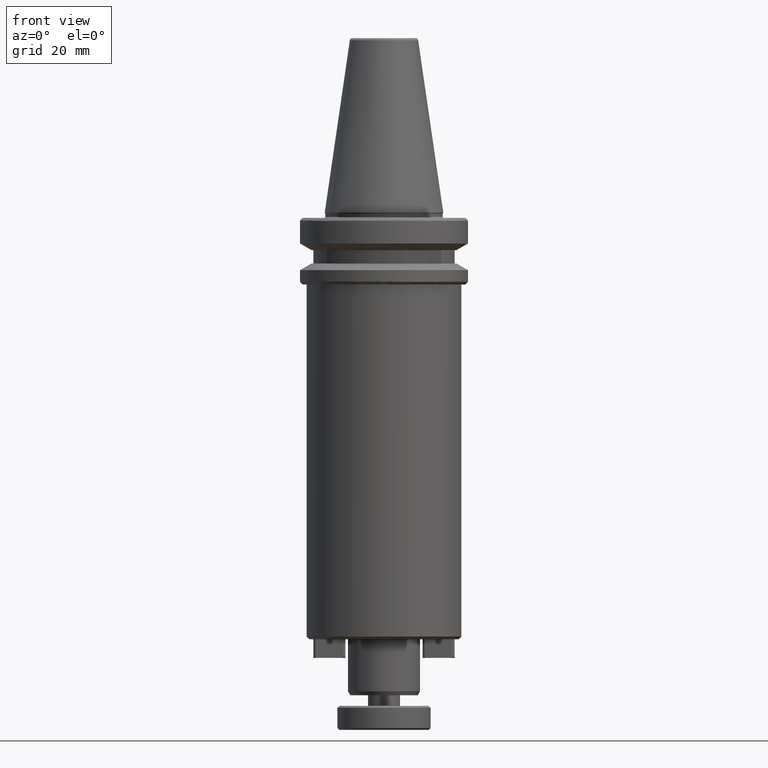
[diagram: clean part render]
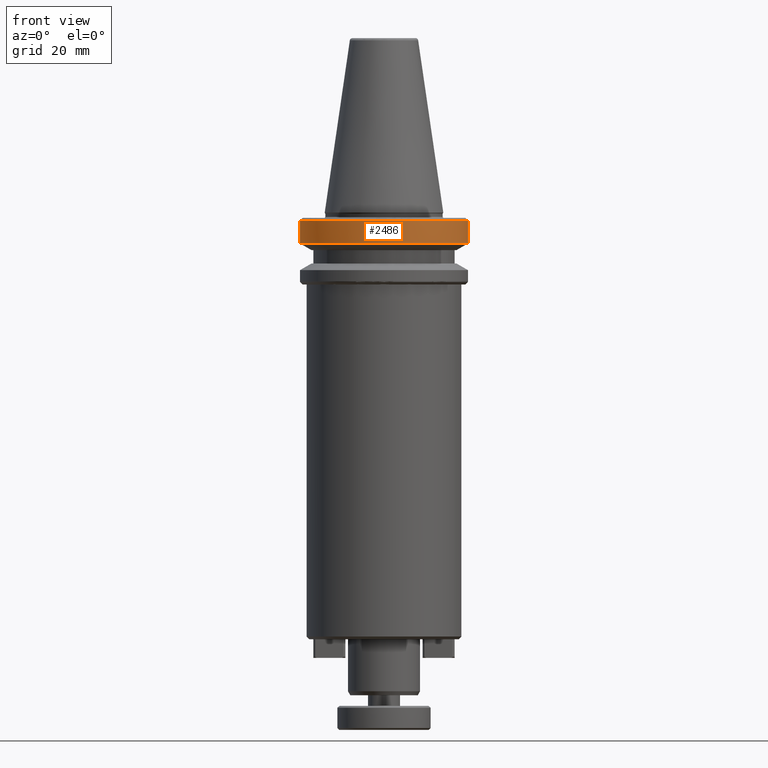
[diagram: same view with one face highlighted and labeled with its STEP entity id]
A machine part, front view. The second image highlights one B-rep face of the part: STEP entity #2486.
In plain terms, the highlighted cylindrical surface (partial cylindrical patch) has radius 31.5 mm, axis along (0, 0, 1).
Its self-contained STEP definition (entity closure, byte-faithful):
#43 = ORIENTED_EDGE ( 'NONE', *, *, #3389, .T. ) ;
#278 = EDGE_CURVE ( 'NONE', #2463, #1646, #1822, .T. ) ;
#285 = AXIS2_PLACEMENT_3D ( 'NONE', #3211, #3201, #3198 ) ;
#291 = FACE_OUTER_BOUND ( 'NONE', #1611, .T. ) ;
#333 = DIRECTION ( 'NONE',  ( 1.000000000000000000, 0.0000000000000000000, 0.0000000000000000000 ) ) ;
#341 = DIRECTION ( 'NONE',  ( 0.0000000000000000000, 0.0000000000000000000, 1.000000000000000000 ) ) ;
#348 = DIRECTION ( 'NONE',  ( 1.000000000000000000, 0.0000000000000000000, 0.0000000000000000000 ) ) ;
#352 = CARTESIAN_POINT ( 'NONE',  ( 0.0000000000000000000, 0.0000000000000000000, 69.75694866325665100 ) ) ;
#445 = DIRECTION ( 'NONE',  ( 1.000000000000000000, 0.0000000000000000000, 5.507058653894625900E-017 ) ) ;
#446 = DIRECTION ( 'NONE',  ( -0.0000000000000000000, -0.0000000000000000000, -1.000000000000000000 ) ) ;
#453 = CARTESIAN_POINT ( 'NONE',  ( 0.0000000000000000000, 0.0000000000000000000, -11.59985799368323700 ) ) ;
#493 = CARTESIAN_POINT ( 'NONE',  ( 31.50000000000000000, 0.0000000000000000000, -11.59985799368323700 ) ) ;
#640 = VERTEX_POINT ( 'NONE', #1537 ) ;
#669 = VERTEX_POINT ( 'NONE', #1109 ) ;
#938 = CYLINDRICAL_SURFACE ( 'NONE', #2358, 31.50000000000000000 ) ;
#1044 = EDGE_CURVE ( 'NONE', #2463, #2034, #3148, .T. ) ;
#1109 = CARTESIAN_POINT ( 'NONE',  ( -8.717453373228753600, -30.26972095486812700, -3.165685424949243700 ) ) ;
#1150 = ORIENTED_EDGE ( 'NONE', *, *, #1044, .F. ) ;
#1209 = DIRECTION ( 'NONE',  ( 0.0000000000000000000, 0.0000000000000000000, 1.000000000000000000 ) ) ;
#1324 = EDGE_CURVE ( 'NONE', #2034, #640, #1355, .T. ) ;
#1355 = LINE ( 'NONE', #2115, #2686 ) ;
#1537 = CARTESIAN_POINT ( 'NONE',  ( -31.50000000000000000, 3.857637417314162700E-015, -3.165685424949243700 ) ) ;
#1582 = EDGE_CURVE ( 'NONE', #1717, #669, #2879, .T. ) ;
#1611 = EDGE_LOOP ( 'NONE', ( #3263, #1150, #1760, #2350, #1743, #43 ) ) ;
#1646 = VERTEX_POINT ( 'NONE', #3087 ) ;
#1663 = AXIS2_PLACEMENT_3D ( 'NONE', #453, #446, #445 ) ;
#1717 = VERTEX_POINT ( 'NONE', #2898 ) ;
#1731 = VECTOR ( 'NONE', #1935, 1000.000000000000000 ) ;
#1743 = ORIENTED_EDGE ( 'NONE', *, *, #1582, .T. ) ;
#1760 = ORIENTED_EDGE ( 'NONE', *, *, #278, .T. ) ;
#1822 = LINE ( 'NONE', #2315, #1731 ) ;
#1935 = DIRECTION ( 'NONE',  ( 0.0000000000000000000, 0.0000000000000000000, 1.000000000000000000 ) ) ;
#2021 = CIRCLE ( 'NONE', #2083, 31.50000000000000000 ) ;
#2034 = VERTEX_POINT ( 'NONE', #2156 ) ;
#2048 = CARTESIAN_POINT ( 'NONE',  ( 0.0000000000000000000, 0.0000000000000000000, -3.165685424949243700 ) ) ;
#2083 = AXIS2_PLACEMENT_3D ( 'NONE', #2048, #2555, #348 ) ;
#2115 = CARTESIAN_POINT ( 'NONE',  ( -31.50000000000000000, 3.857637417314162700E-015, 69.75694866325665100 ) ) ;
#2156 = CARTESIAN_POINT ( 'NONE',  ( -31.50000000000000000, 3.857637417314162700E-015, -11.59985799368323700 ) ) ;
#2315 = CARTESIAN_POINT ( 'NONE',  ( 31.50000000000000000, 0.0000000000000000000, 69.75694866325665100 ) ) ;
#2350 = ORIENTED_EDGE ( 'NONE', *, *, #2787, .T. ) ;
#2358 = AXIS2_PLACEMENT_3D ( 'NONE', #352, #341, #333 ) ;
#2463 = VERTEX_POINT ( 'NONE', #493 ) ;
#2486 = ADVANCED_FACE ( 'NONE', ( #291 ), #938, .T. ) ;
#2494 = CARTESIAN_POINT ( 'NONE',  ( 0.0000000000000000000, 0.0000000000000000000, -3.165685424949243700 ) ) ;
#2555 = DIRECTION ( 'NONE',  ( -0.0000000000000000000, -0.0000000000000000000, -1.000000000000000000 ) ) ;
#2686 = VECTOR ( 'NONE', #1209, 1000.000000000000000 ) ;
#2743 = DIRECTION ( 'NONE',  ( 1.000000000000000000, 8.881784197001252300E-016, 0.0000000000000000000 ) ) ;
#2787 = EDGE_CURVE ( 'NONE', #1646, #1717, #2021, .T. ) ;
#2879 = CIRCLE ( 'NONE', #285, 31.50000000000000000 ) ;
#2898 = CARTESIAN_POINT ( 'NONE',  ( 8.599437155675833100, -30.30345987846242700, -3.165685424949243700 ) ) ;
#3087 = CARTESIAN_POINT ( 'NONE',  ( 31.50000000000000000, 0.0000000000000000000, -3.165685424949243700 ) ) ;
#3148 = CIRCLE ( 'NONE', #1663, 31.50000000000000000 ) ;
#3198 = DIRECTION ( 'NONE',  ( -1.000000000000000000, 0.0000000000000000000, 0.0000000000000000000 ) ) ;
#3201 = DIRECTION ( 'NONE',  ( -0.0000000000000000000, -0.0000000000000000000, -1.000000000000000000 ) ) ;
#3206 = AXIS2_PLACEMENT_3D ( 'NONE', #2494, #3411, #2743 ) ;
#3211 = CARTESIAN_POINT ( 'NONE',  ( 0.0000000000000000000, 0.0000000000000000000, -3.165685424949243700 ) ) ;
#3263 = ORIENTED_EDGE ( 'NONE', *, *, #1324, .F. ) ;
#3382 = CIRCLE ( 'NONE', #3206, 31.50000000000000000 ) ;
#3389 = EDGE_CURVE ( 'NONE', #669, #640, #3382, .T. ) ;
#3411 = DIRECTION ( 'NONE',  ( -0.0000000000000000000, -0.0000000000000000000, -1.000000000000000000 ) ) ;